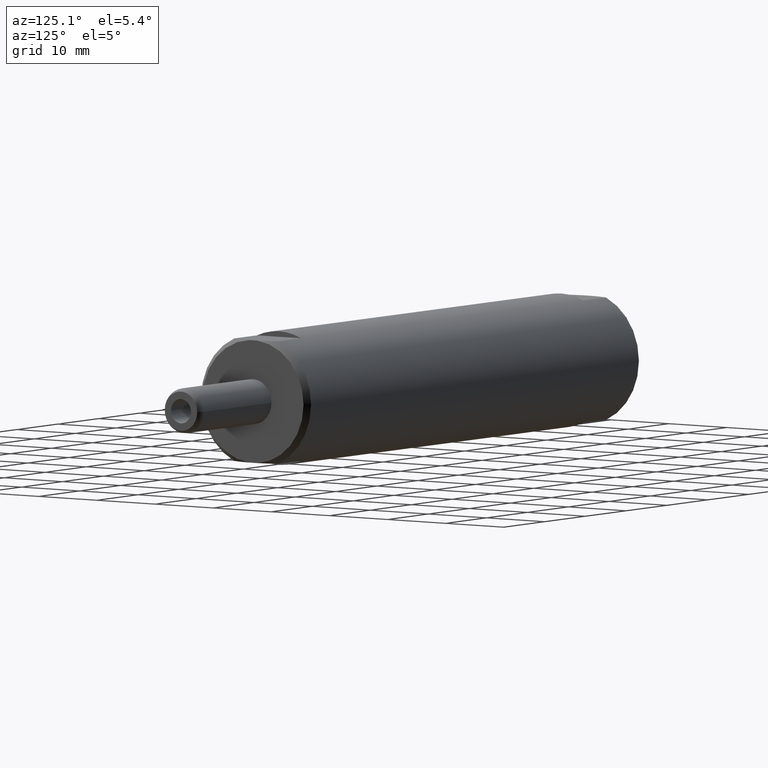
[diagram: clean part render]
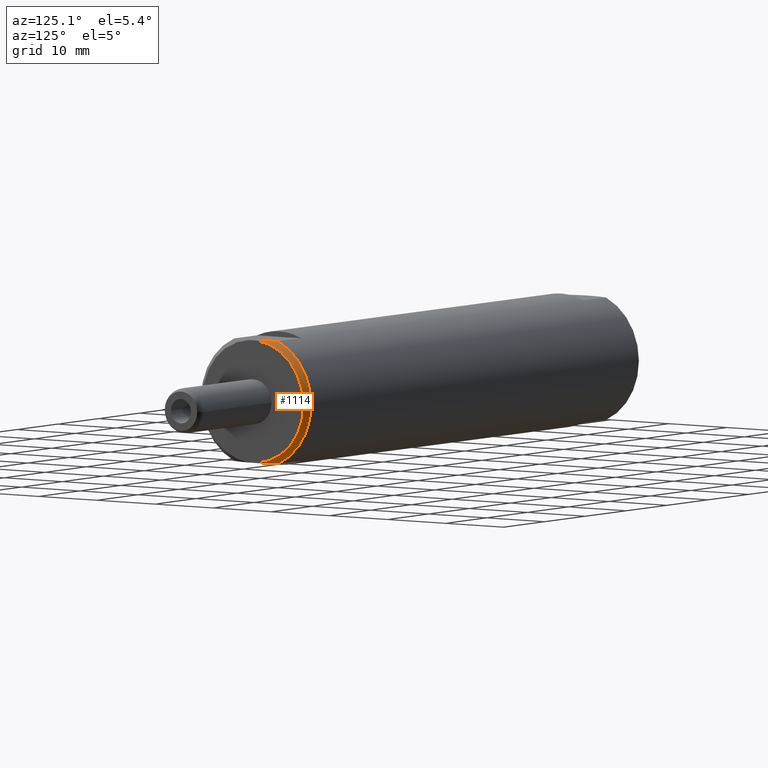
[diagram: same view with one face highlighted and labeled with its STEP entity id]
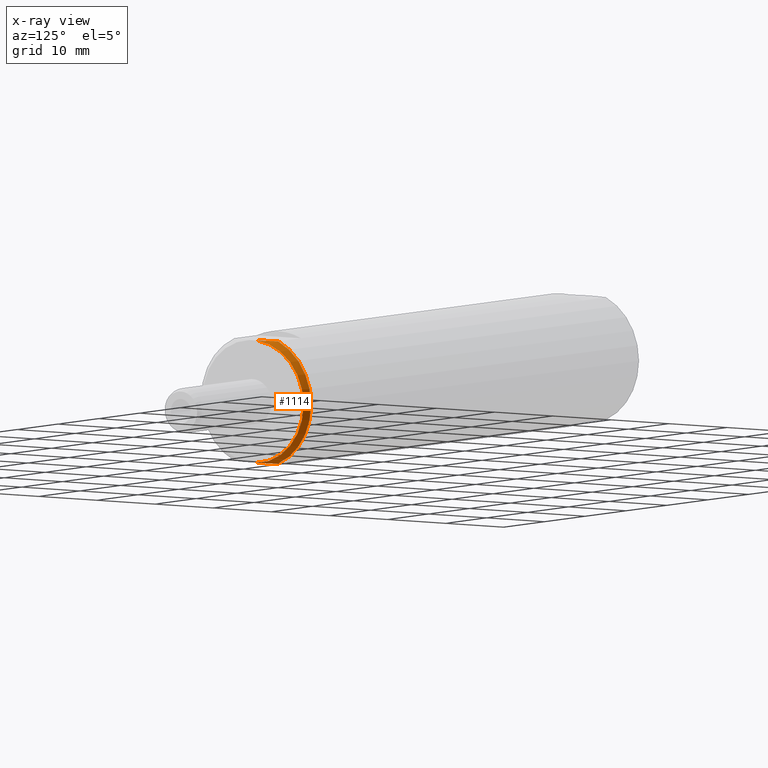
[diagram: x-ray of the same camera — body ghosted, the highlighted face saturated]
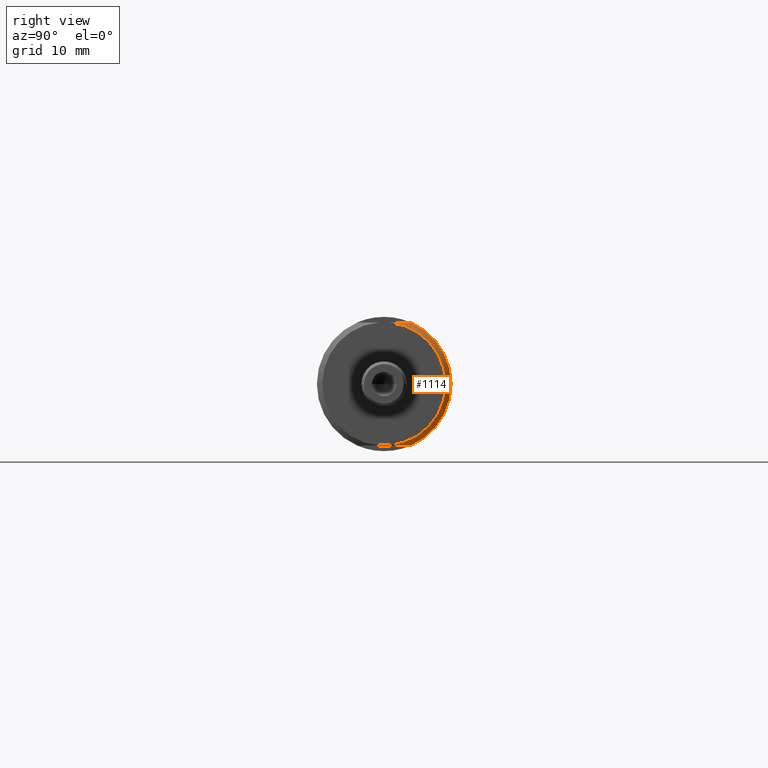
[diagram: same view with one face highlighted and labeled with its STEP entity id]
A machine part, auxiliary view. The second image highlights one B-rep face of the part: STEP entity #1114.
The next image is the same camera in x-ray: the body ghosted, the highlighted face saturated — about 0% of this face is hidden behind the body in this view.
A second angle (right view) of the same face is appended — the face is thin or edge-on in the first view.
In plain terms, the highlighted conical surface has half-angle 45 deg.
Its self-contained STEP definition (entity closure, byte-faithful):
#470=CARTESIAN_POINT('',(3.219E0,0.E0,0.E0));
#471=DIRECTION('',(1.E0,0.E0,0.E0));
#472=DIRECTION('',(0.E0,7.641599032380E-2,-9.970760233918E-1));
#473=AXIS2_PLACEMENT_3D('',#470,#471,#472);
#478=CARTESIAN_POINT('',(3.189E0,1.486707772227E-1,3.41E-1));
#479=CARTESIAN_POINT('',(3.194724788364E0,1.343463665258E-1,3.41E-1));
#480=CARTESIAN_POINT('',(3.204574992941E0,1.061751476201E-1,3.41E-1));
#481=CARTESIAN_POINT('',(3.214440937043E0,6.585273961284E-2,3.41E-1));
#482=CARTESIAN_POINT('',(3.217996303728E0,3.926890540728E-2,3.41E-1));
#483=CARTESIAN_POINT('',(3.219E0,2.613426869074E-2,3.41E-1));
#488=CARTESIAN_POINT('',(3.189E0,0.E0,0.E0));
#489=DIRECTION('',(-1.E0,0.E0,0.E0));
#490=DIRECTION('',(0.E0,3.996526269427E-1,9.166666666667E-1));
#491=AXIS2_PLACEMENT_3D('',#488,#489,#490);
#496=CARTESIAN_POINT('',(3.219E0,2.613426869074E-2,-3.41E-1));
#497=CARTESIAN_POINT('',(3.217991582532E0,3.933068823345E-2,-3.41E-1));
#498=CARTESIAN_POINT('',(3.214416918061E0,6.599617569636E-2,-3.41E-1));
#499=CARTESIAN_POINT('',(3.204518426435E0,1.063578946399E-1,-3.41E-1));
#500=CARTESIAN_POINT('',(3.194694340892E0,1.344225513682E-1,-3.41E-1));
#501=CARTESIAN_POINT('',(3.189E0,1.486707772227E-1,-3.41E-1));
#761=CARTESIAN_POINT('',(3.189E0,1.486707772227E-1,3.41E-1));
#763=VERTEX_POINT('',#761);
#768=VERTEX_POINT('',#483);
#777=CARTESIAN_POINT('',(3.189E0,1.486707772227E-1,-3.41E-1));
#778=VERTEX_POINT('',#777);
#784=CARTESIAN_POINT('',(3.219E0,2.613426869074E-2,-3.41E-1));
#785=VERTEX_POINT('',#784);
#1102=CARTESIAN_POINT('',(3.204E0,0.E0,0.E0));
#1103=DIRECTION('',(-1.E0,0.E0,0.E0));
#1104=DIRECTION('',(0.E0,1.E0,0.E0));
#1105=AXIS2_PLACEMENT_3D('',#1102,#1103,#1104);
#1106=CONICAL_SURFACE('',#1105,3.57E-1,4.5E1);
#1108=ORIENTED_EDGE('',*,*,#1107,.T.);
#1109=ORIENTED_EDGE('',*,*,#1002,.F.);
#1110=ORIENTED_EDGE('',*,*,#1035,.T.);
#1111=ORIENTED_EDGE('',*,*,#1097,.F.);
#1112=EDGE_LOOP('',(#1108,#1109,#1110,#1111));
#1113=FACE_OUTER_BOUND('',#1112,.F.);
#474=CIRCLE('',#473,3.42E-1);
#484=B_SPLINE_CURVE_WITH_KNOTS('',3,(#478,#479,#480,#481,#482,#483),
.UNSPECIFIED.,.F.,.F.,(4,1,1,4),(0.E0,3.333333333333E-1,6.666666666667E-1,1.E0),
.UNSPECIFIED.);
#492=CIRCLE('',#491,3.72E-1);
#502=B_SPLINE_CURVE_WITH_KNOTS('',3,(#496,#497,#498,#499,#500,#501),
.UNSPECIFIED.,.F.,.F.,(4,1,1,4),(0.E0,3.333333333333E-1,6.666666666667E-1,1.E0),
.UNSPECIFIED.);
#1002=EDGE_CURVE('',#763,#768,#484,.T.);
#1035=EDGE_CURVE('',#763,#778,#492,.T.);
#1097=EDGE_CURVE('',#785,#778,#502,.T.);
#1107=EDGE_CURVE('',#785,#768,#474,.T.);
#1114=ADVANCED_FACE('',(#1113),#1106,.T.);